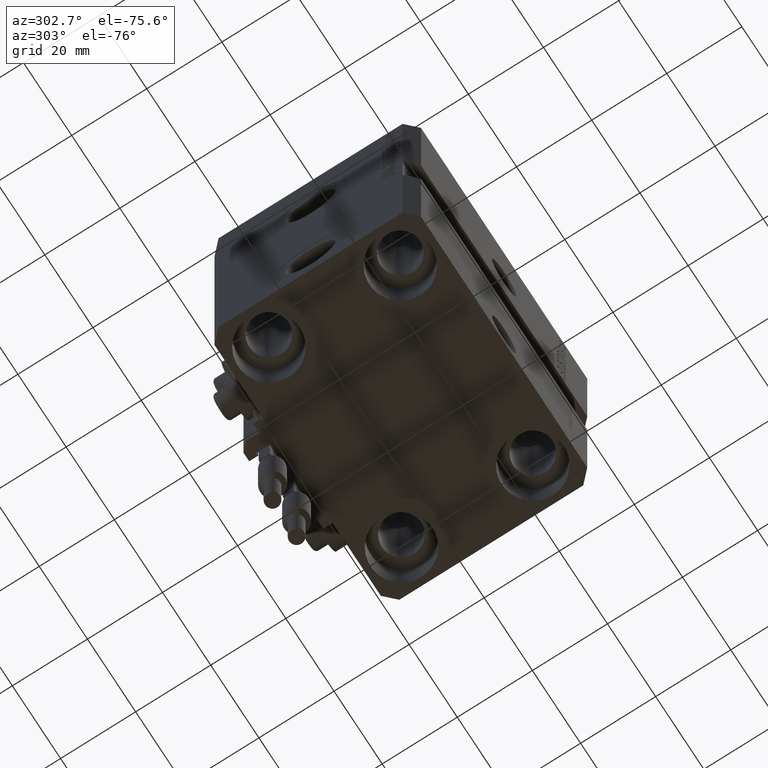
[diagram: clean part render]
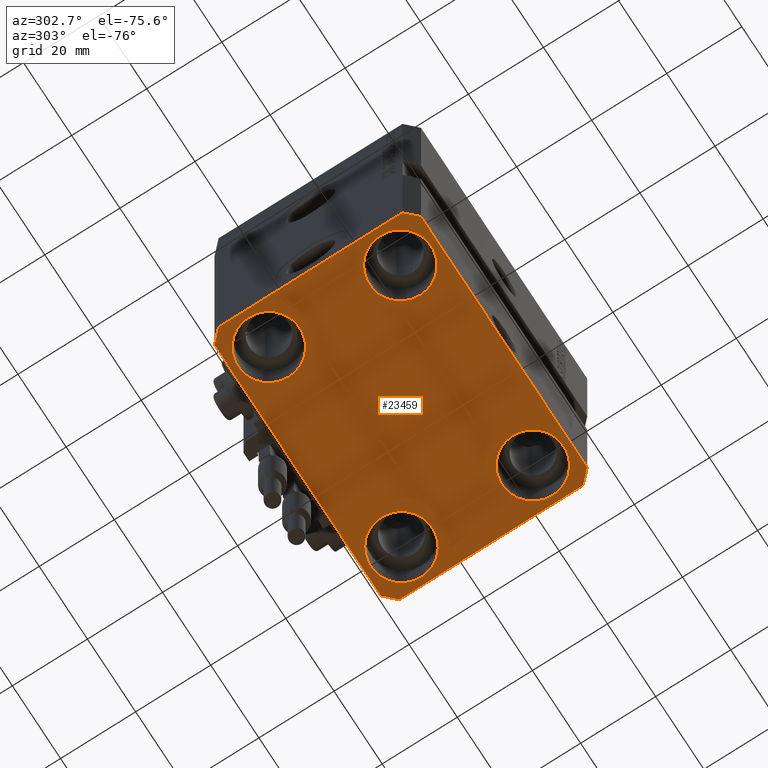
[diagram: same view with one face highlighted and labeled with its STEP entity id]
A machine part, auxiliary view. The second image highlights one B-rep face of the part: STEP entity #23459.
In plain terms, the highlighted planar face has unit normal (0, 0, 1).
Its self-contained STEP definition (entity closure, byte-faithful):
#757 = VECTOR ( 'NONE', #17285, 1000.000000000000114 ) ;
#977 = FACE_BOUND ( 'NONE', #4547, .T. ) ;
#1154 = EDGE_LOOP ( 'NONE', ( #23785, #2991 ) ) ;
#1456 = ORIENTED_EDGE ( 'NONE', *, *, #34503, .F. ) ;
#1891 = CIRCLE ( 'NONE', #46504, 8.250000000000000000 ) ;
#2007 = LINE ( 'NONE', #27309, #45191 ) ;
#2041 = ORIENTED_EDGE ( 'NONE', *, *, #36602, .T. ) ;
#2050 = CARTESIAN_POINT ( 'NONE',  ( 34.50000000000056843, 27.50000000000000000, -80.00000000000000000 ) ) ;
#2134 = DIRECTION ( 'NONE',  ( 1.000000000000000000, 0.000000000000000000, 0.000000000000000000 ) ) ;
#2641 = CARTESIAN_POINT ( 'NONE',  ( -19.25000000000000355, -17.50000000000000000, -80.00000000000000000 ) ) ;
#2902 = LINE ( 'NONE', #10839, #37030 ) ;
#2991 = ORIENTED_EDGE ( 'NONE', *, *, #10602, .T. ) ;
#3180 = ORIENTED_EDGE ( 'NONE', *, *, #45030, .F. ) ;
#3213 = VECTOR ( 'NONE', #46137, 1000.000000000000000 ) ;
#4119 = CARTESIAN_POINT ( 'NONE',  ( -27.50000000000000355, -17.50000000000000000, -80.00000000000000000 ) ) ;
#4249 = EDGE_CURVE ( 'NONE', #14650, #9725, #2902, .T. ) ;
#4349 = ORIENTED_EDGE ( 'NONE', *, *, #35368, .F. ) ;
#4407 = CARTESIAN_POINT ( 'NONE',  ( 19.25000000000000000, -17.50000000000000000, -80.00000000000000000 ) ) ;
#4547 = EDGE_LOOP ( 'NONE', ( #8496, #35636 ) ) ;
#4599 = ORIENTED_EDGE ( 'NONE', *, *, #5490, .F. ) ;
#4689 = DIRECTION ( 'NONE',  ( 1.000000000000000000, 0.000000000000000000, 0.000000000000000000 ) ) ;
#5252 = CARTESIAN_POINT ( 'NONE',  ( -35.75000000000000711, 17.50000000000000000, -80.00000000000000000 ) ) ;
#5384 = CARTESIAN_POINT ( 'NONE',  ( -27.50000000000000355, 17.50000000000000000, -80.00000000000000000 ) ) ;
#5443 = DIRECTION ( 'NONE',  ( -0.7071067811865356934, 0.7071067811865594521, 0.000000000000000000 ) ) ;
#5490 = EDGE_CURVE ( 'NONE', #10624, #17269, #39388, .T. ) ;
#6120 = VERTEX_POINT ( 'NONE', #5252 ) ;
#6905 = DIRECTION ( 'NONE',  ( 1.000000000000000000, 0.000000000000000000, 0.000000000000000000 ) ) ;
#8496 = ORIENTED_EDGE ( 'NONE', *, *, #27867, .T. ) ;
#8533 = CARTESIAN_POINT ( 'NONE',  ( -34.49999999999999289, 27.50000000000000000, -80.00000000000000000 ) ) ;
#8540 = EDGE_CURVE ( 'NONE', #6120, #19451, #40350, .T. ) ;
#8765 = DIRECTION ( 'NONE',  ( 1.076236605503979380E-14, 1.000000000000000000, 0.000000000000000000 ) ) ;
#8817 = EDGE_CURVE ( 'NONE', #17610, #27995, #1891, .T. ) ;
#8954 = DIRECTION ( 'NONE',  ( 1.000000000000000000, 0.000000000000000000, 0.000000000000000000 ) ) ;
#9118 = CARTESIAN_POINT ( 'NONE',  ( -27.50000000000000355, 17.50000000000000000, -80.00000000000000000 ) ) ;
#9517 = VERTEX_POINT ( 'NONE', #13728 ) ;
#9725 = VERTEX_POINT ( 'NONE', #23812 ) ;
#10563 = VECTOR ( 'NONE', #5443, 1000.000000000000114 ) ;
#10602 = EDGE_CURVE ( 'NONE', #27995, #17610, #36069, .T. ) ;
#10624 = VERTEX_POINT ( 'NONE', #12789 ) ;
#10839 = CARTESIAN_POINT ( 'NONE',  ( -34.49999999999998579, -27.49999999999999645, -80.00000000000000000 ) ) ;
#11105 = CARTESIAN_POINT ( 'NONE',  ( -35.75000000000000711, -17.50000000000000000, -80.00000000000000000 ) ) ;
#11673 = DIRECTION ( 'NONE',  ( -0.7071067811865471286, -0.7071067811865479058, 0.000000000000000000 ) ) ;
#11748 = AXIS2_PLACEMENT_3D ( 'NONE', #27926, #46007, #45776 ) ;
#11916 = CARTESIAN_POINT ( 'NONE',  ( 19.25000000000000000, 17.50000000000001066, -80.00000000000000000 ) ) ;
#12267 = FACE_BOUND ( 'NONE', #47525, .T. ) ;
#12432 = CIRCLE ( 'NONE', #44010, 8.250000000000000000 ) ;
#12789 = CARTESIAN_POINT ( 'NONE',  ( 34.50000000000056843, 27.50000000000000000, -80.00000000000000000 ) ) ;
#13728 = CARTESIAN_POINT ( 'NONE',  ( 37.49999999999999289, -24.50000000000000000, -80.00000000000000000 ) ) ;
#14292 = EDGE_LOOP ( 'NONE', ( #17910, #2041 ) ) ;
#14650 = VERTEX_POINT ( 'NONE', #17367 ) ;
#14939 = AXIS2_PLACEMENT_3D ( 'NONE', #5384, #19822, #31161 ) ;
#15650 = FACE_OUTER_BOUND ( 'NONE', #20034, .T. ) ;
#15726 = CIRCLE ( 'NONE', #28840, 8.250000000000000000 ) ;
#15881 = FACE_BOUND ( 'NONE', #14292, .T. ) ;
#15890 = CIRCLE ( 'NONE', #46692, 8.249999999999992895 ) ;
#16102 = DIRECTION ( 'NONE',  ( -0.000000000000000000, -0.000000000000000000, 1.000000000000000000 ) ) ;
#17269 = VERTEX_POINT ( 'NONE', #23236 ) ;
#17285 = DIRECTION ( 'NONE',  ( 0.7071067811865474617, 0.7071067811865474617, 0.000000000000000000 ) ) ;
#17367 = CARTESIAN_POINT ( 'NONE',  ( -34.49999999999998579, -27.49999999999999645, -80.00000000000000000 ) ) ;
#17404 = EDGE_CURVE ( 'NONE', #24468, #17959, #12432, .T. ) ;
#17610 = VERTEX_POINT ( 'NONE', #4407 ) ;
#17910 = ORIENTED_EDGE ( 'NONE', *, *, #35383, .T. ) ;
#17959 = VERTEX_POINT ( 'NONE', #11105 ) ;
#18394 = CARTESIAN_POINT ( 'NONE',  ( -37.49999999999999289, -24.50000000000000000, -80.00000000000000000 ) ) ;
#18927 = EDGE_CURVE ( 'NONE', #27636, #14650, #34451, .T. ) ;
#19129 = CARTESIAN_POINT ( 'NONE',  ( 27.49999999999999645, 17.50000000000001066, -80.00000000000000000 ) ) ;
#19413 = VECTOR ( 'NONE', #31543, 1000.000000000000000 ) ;
#19451 = VERTEX_POINT ( 'NONE', #21828 ) ;
#19822 = DIRECTION ( 'NONE',  ( -0.000000000000000000, -0.000000000000000000, 1.000000000000000000 ) ) ;
#20034 = EDGE_LOOP ( 'NONE', ( #4599, #1456, #20210, #3180, #44673, #47326, #35594, #4349 ) ) ;
#20210 = ORIENTED_EDGE ( 'NONE', *, *, #33791, .F. ) ;
#20578 = LINE ( 'NONE', #23981, #10563 ) ;
#20580 = CIRCLE ( 'NONE', #43710, 8.250000000000000000 ) ;
#20787 = DIRECTION ( 'NONE',  ( -0.000000000000000000, -0.000000000000000000, 1.000000000000000000 ) ) ;
#21828 = CARTESIAN_POINT ( 'NONE',  ( -19.25000000000000355, 17.50000000000000000, -80.00000000000000000 ) ) ;
#21839 = CARTESIAN_POINT ( 'NONE',  ( 35.74999999999999289, 17.50000000000001066, -80.00000000000000000 ) ) ;
#22952 = VERTEX_POINT ( 'NONE', #11916 ) ;
#23236 = CARTESIAN_POINT ( 'NONE',  ( -34.49999999999999289, 27.50000000000000000, -80.00000000000000000 ) ) ;
#23406 = CARTESIAN_POINT ( 'NONE',  ( 27.50000000000000355, -17.50000000000000000, -80.00000000000000000 ) ) ;
#23459 = ADVANCED_FACE ( 'NONE', ( #977, #45297, #15881, #12267, #15650 ), #31529, .F. ) ;
#23785 = ORIENTED_EDGE ( 'NONE', *, *, #8817, .T. ) ;
#23812 = CARTESIAN_POINT ( 'NONE',  ( 34.49999999999999289, -27.49999999999999645, -80.00000000000000000 ) ) ;
#23863 = CARTESIAN_POINT ( 'NONE',  ( 27.50000000000000355, -17.50000000000000000, -80.00000000000000000 ) ) ;
#23981 = CARTESIAN_POINT ( 'NONE',  ( 37.50000000000051870, 24.49999999999995381, -80.00000000000000000 ) ) ;
#24274 = LINE ( 'NONE', #38985, #757 ) ;
#24468 = VERTEX_POINT ( 'NONE', #2641 ) ;
#25322 = VERTEX_POINT ( 'NONE', #21839 ) ;
#25543 = DIRECTION ( 'NONE',  ( 1.000000000000000000, 0.000000000000000000, 0.000000000000000000 ) ) ;
#27309 = CARTESIAN_POINT ( 'NONE',  ( 37.49999999999999289, -24.50000000000000000, -80.00000000000000000 ) ) ;
#27528 = CIRCLE ( 'NONE', #29825, 8.249999999999992895 ) ;
#27636 = VERTEX_POINT ( 'NONE', #18394 ) ;
#27867 = EDGE_CURVE ( 'NONE', #17959, #24468, #15726, .T. ) ;
#27926 = CARTESIAN_POINT ( 'NONE',  ( 0.000000000000000000, 0.000000000000000000, -80.00000000000000000 ) ) ;
#27995 = VERTEX_POINT ( 'NONE', #46491 ) ;
#28109 = DIRECTION ( 'NONE',  ( -0.000000000000000000, -0.000000000000000000, 1.000000000000000000 ) ) ;
#28840 = AXIS2_PLACEMENT_3D ( 'NONE', #4119, #33259, #44843 ) ;
#29028 = LINE ( 'NONE', #43748, #38170 ) ;
#29825 = AXIS2_PLACEMENT_3D ( 'NONE', #19129, #44472, #4689 ) ;
#31161 = DIRECTION ( 'NONE',  ( 1.000000000000000000, 0.000000000000000000, 0.000000000000000000 ) ) ;
#31227 = EDGE_CURVE ( 'NONE', #43725, #27636, #29028, .T. ) ;
#31529 = PLANE ( 'NONE',  #11748 ) ;
#31543 = DIRECTION ( 'NONE',  ( 0.7071067811865483499, -0.7071067811865466846, 0.000000000000000000 ) ) ;
#32132 = ORIENTED_EDGE ( 'NONE', *, *, #8540, .T. ) ;
#33259 = DIRECTION ( 'NONE',  ( -0.000000000000000000, -0.000000000000000000, 1.000000000000000000 ) ) ;
#33791 = EDGE_CURVE ( 'NONE', #9517, #44262, #2007, .T. ) ;
#34245 = DIRECTION ( 'NONE',  ( 1.000000000000000000, 0.000000000000000000, 0.000000000000000000 ) ) ;
#34451 = LINE ( 'NONE', #35169, #19413 ) ;
#34503 = EDGE_CURVE ( 'NONE', #44262, #10624, #20578, .T. ) ;
#35169 = CARTESIAN_POINT ( 'NONE',  ( -37.49999999999999289, -24.50000000000000000, -80.00000000000000000 ) ) ;
#35209 = EDGE_CURVE ( 'NONE', #19451, #6120, #20580, .T. ) ;
#35368 = EDGE_CURVE ( 'NONE', #17269, #43725, #41556, .T. ) ;
#35383 = EDGE_CURVE ( 'NONE', #22952, #25322, #27528, .T. ) ;
#35514 = CARTESIAN_POINT ( 'NONE',  ( -27.50000000000000355, -17.50000000000000000, -80.00000000000000000 ) ) ;
#35594 = ORIENTED_EDGE ( 'NONE', *, *, #31227, .F. ) ;
#35636 = ORIENTED_EDGE ( 'NONE', *, *, #17404, .T. ) ;
#36069 = CIRCLE ( 'NONE', #46842, 8.250000000000000000 ) ;
#36602 = EDGE_CURVE ( 'NONE', #25322, #22952, #15890, .T. ) ;
#37030 = VECTOR ( 'NONE', #25543, 1000.000000000000000 ) ;
#37467 = CARTESIAN_POINT ( 'NONE',  ( -37.49999999999999289, 24.50000000000000000, -80.00000000000000000 ) ) ;
#37624 = DIRECTION ( 'NONE',  ( -0.000000000000000000, -0.000000000000000000, 1.000000000000000000 ) ) ;
#38170 = VECTOR ( 'NONE', #38929, 1000.000000000000000 ) ;
#38929 = DIRECTION ( 'NONE',  ( 0.000000000000000000, -1.000000000000000000, 0.000000000000000000 ) ) ;
#38985 = CARTESIAN_POINT ( 'NONE',  ( 34.49999999999999289, -27.49999999999999645, -80.00000000000000000 ) ) ;
#39388 = LINE ( 'NONE', #2050, #3213 ) ;
#39912 = CARTESIAN_POINT ( 'NONE',  ( 27.49999999999999645, 17.50000000000001066, -80.00000000000000000 ) ) ;
#40350 = CIRCLE ( 'NONE', #14939, 8.250000000000000000 ) ;
#41556 = LINE ( 'NONE', #8533, #47551 ) ;
#41976 = DIRECTION ( 'NONE',  ( -0.000000000000000000, -0.000000000000000000, 1.000000000000000000 ) ) ;
#42245 = CARTESIAN_POINT ( 'NONE',  ( 37.50000000000051870, 24.49999999999995381, -80.00000000000000000 ) ) ;
#43710 = AXIS2_PLACEMENT_3D ( 'NONE', #9118, #16102, #2134 ) ;
#43725 = VERTEX_POINT ( 'NONE', #37467 ) ;
#43748 = CARTESIAN_POINT ( 'NONE',  ( -37.49999999999999289, 24.50000000000000000, -80.00000000000000000 ) ) ;
#43970 = ORIENTED_EDGE ( 'NONE', *, *, #35209, .T. ) ;
#44010 = AXIS2_PLACEMENT_3D ( 'NONE', #35514, #20787, #45660 ) ;
#44262 = VERTEX_POINT ( 'NONE', #42245 ) ;
#44472 = DIRECTION ( 'NONE',  ( -0.000000000000000000, -0.000000000000000000, 1.000000000000000000 ) ) ;
#44673 = ORIENTED_EDGE ( 'NONE', *, *, #4249, .F. ) ;
#44843 = DIRECTION ( 'NONE',  ( 1.000000000000000000, 0.000000000000000000, 0.000000000000000000 ) ) ;
#45030 = EDGE_CURVE ( 'NONE', #9725, #9517, #24274, .T. ) ;
#45191 = VECTOR ( 'NONE', #8765, 1000.000000000000000 ) ;
#45297 = FACE_BOUND ( 'NONE', #1154, .T. ) ;
#45660 = DIRECTION ( 'NONE',  ( 1.000000000000000000, 0.000000000000000000, 0.000000000000000000 ) ) ;
#45776 = DIRECTION ( 'NONE',  ( 1.000000000000000000, 0.000000000000000000, -0.000000000000000000 ) ) ;
#46007 = DIRECTION ( 'NONE',  ( 0.000000000000000000, 0.000000000000000000, 1.000000000000000000 ) ) ;
#46137 = DIRECTION ( 'NONE',  ( -1.000000000000000000, 0.000000000000000000, 0.000000000000000000 ) ) ;
#46491 = CARTESIAN_POINT ( 'NONE',  ( 35.75000000000000711, -17.50000000000000000, -80.00000000000000000 ) ) ;
#46504 = AXIS2_PLACEMENT_3D ( 'NONE', #23863, #37624, #34245 ) ;
#46692 = AXIS2_PLACEMENT_3D ( 'NONE', #39912, #28109, #6905 ) ;
#46842 = AXIS2_PLACEMENT_3D ( 'NONE', #23406, #41976, #8954 ) ;
#47326 = ORIENTED_EDGE ( 'NONE', *, *, #18927, .F. ) ;
#47525 = EDGE_LOOP ( 'NONE', ( #32132, #43970 ) ) ;
#47551 = VECTOR ( 'NONE', #11673, 1000.000000000000000 ) ;